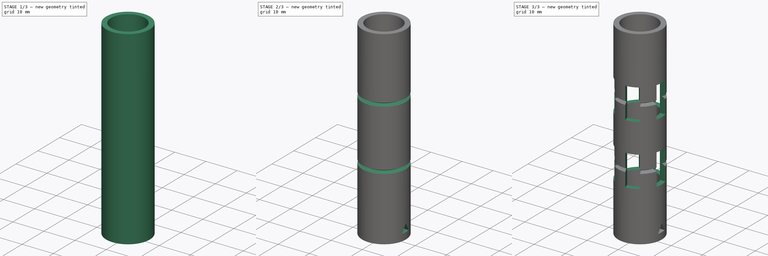
[diagram: build sequence overview — one tinted view per stage of 3, left to right]
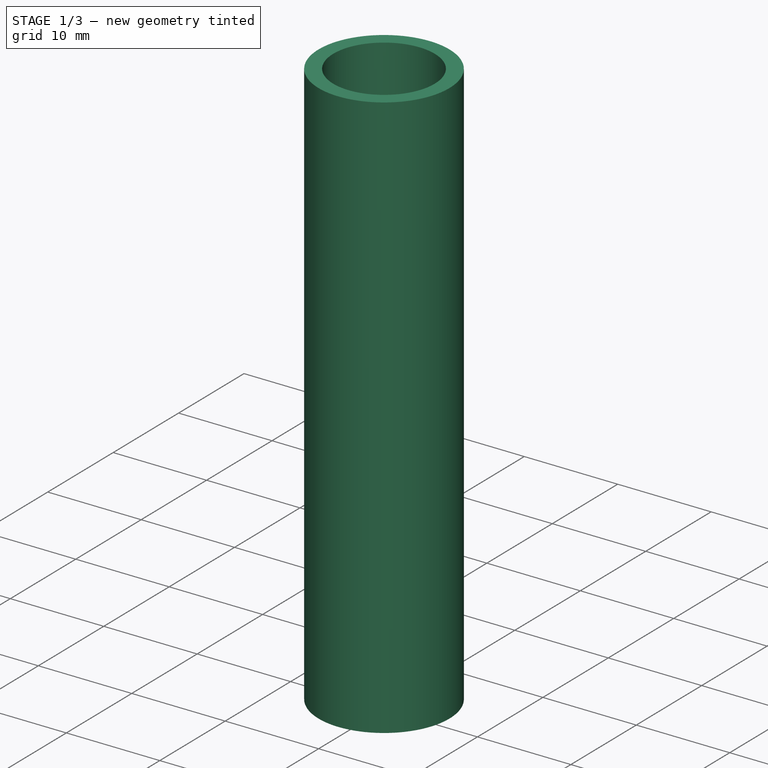
[diagram: stage 1 of 3 — iso view after this stage's code; geometry added in this stage tinted green]
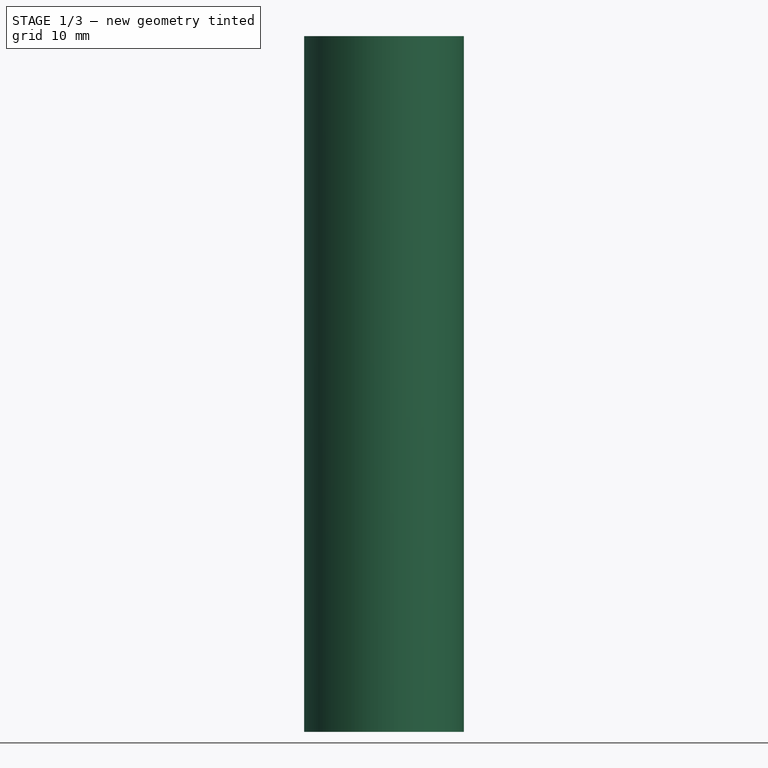
[diagram: stage 1 of 3 — front view after this stage's code; geometry added in this stage tinted green]
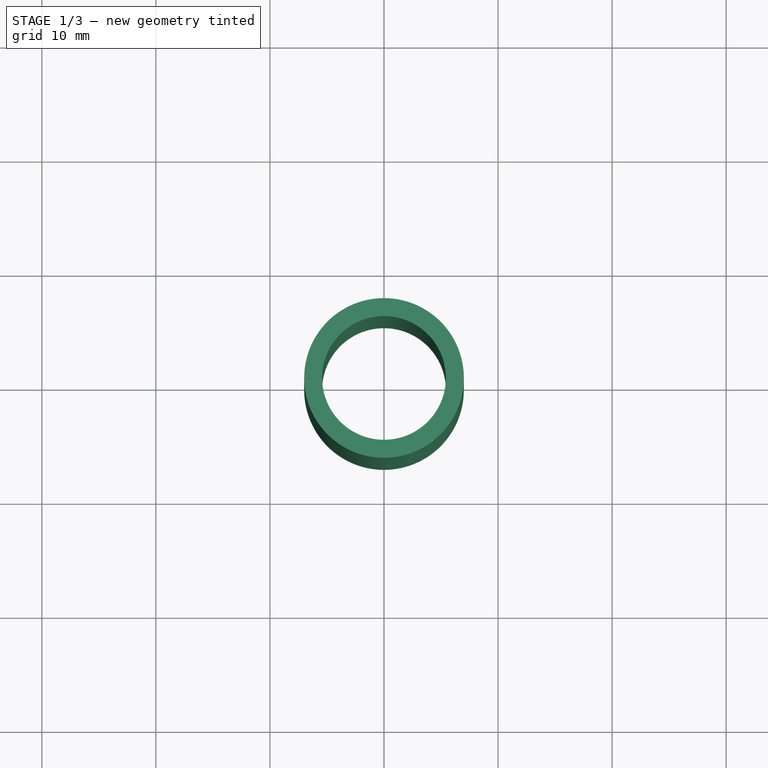
[diagram: stage 1 of 3 — top view after this stage's code; geometry added in this stage tinted green]
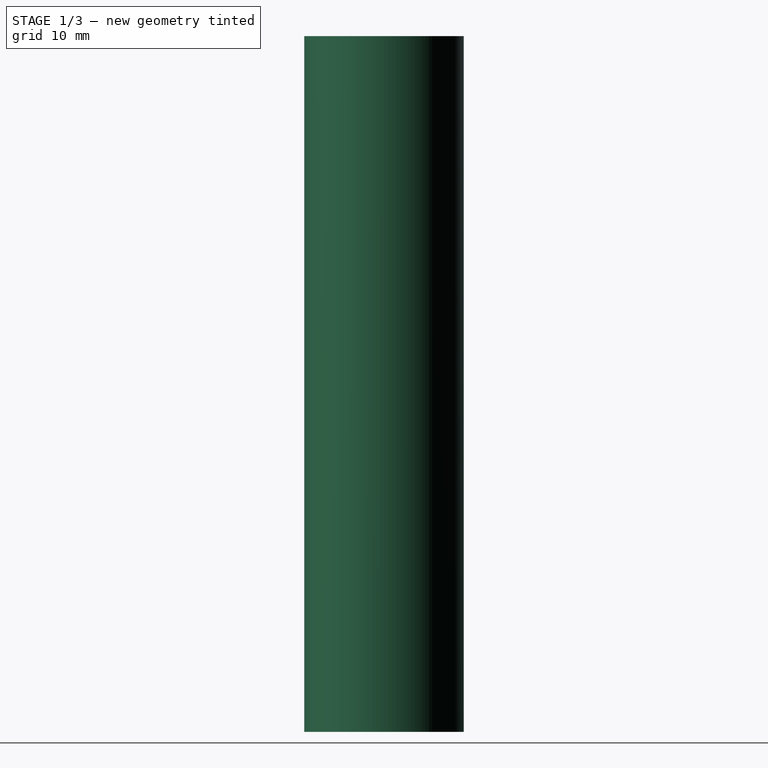
[diagram: stage 1 of 3 — right view after this stage's code; geometry added in this stage tinted green]
FCSTD DOCUMENT  (FreeCAD 0.20R29177 (Git))
Label: syringe
License: All rights reserved
LicenseURL: http://en.wikipedia.org/wiki/All_rights_reserved
objects: Sketcher::SketchObject×5, PartDesign::Pocket×3, PartDesign::Plane×2, PartDesign::Pad×1, PartDesign::Groove×1, PartDesign::PolarPattern×1, PartDesign::Body×1
note: 19 computed .brp shape members not serialized (recipe doc carries the construction recipe); baked Part::Feature solids carry a one-line shape summary decoded from their .brp

FEATURE [Sketcher::SketchObject] Sketch
  FullyConstrained = true
  MapMode = 5
  Support = -> [XY_Plane]
  sketch-geometry (1):
    g0: Circle CenterX=0 CenterY=0 CenterZ=0 NormalX=0 NormalY=0 NormalZ=1 AngleXU=0 Radius=7
  constraints (2):
    c: Coincident(g0,g-1)
    c: Diameter(g0) = 14  'Diameter'
FEATURE [PartDesign::Pad] Pad
  Direction = (0,0,1)
  Length = 61
  Length2 = 10
  Profile = -> Sketch
  ReferenceAxis = -> Sketch [N_Axis]
  Type = 0
FEATURE [Sketcher::SketchObject] Sketch001
  FullyConstrained = true
  MapMode = 5
  Placement = pos=(0,0,61) rot=(0,0,1;0rad)
  Support = -> [Pad]
  sketch-geometry (1):
    g0: Circle CenterX=0 CenterY=0 CenterZ=0 NormalX=0 NormalY=0 NormalZ=1 AngleXU=0 Radius=5.425
  constraints (2):
    c: Coincident(g0,g-1)
    c: Diameter(g0) = 10.85
FEATURE [PartDesign::Pocket] Pocket
  BaseFeature = -> Pad
  Direction = (0,0,-1)
  Length = 5
  Length2 = 5
  Profile = -> Sketch001
  ReferenceAxis = -> Sketch001 [N_Axis]
  Type = 1
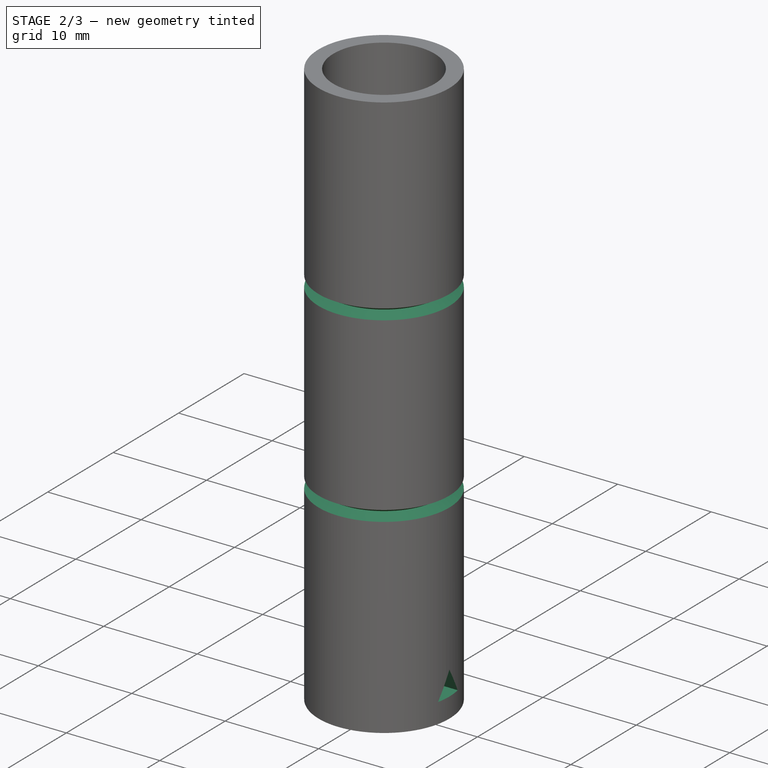
[diagram: stage 2 of 3 — iso view after this stage's code; geometry added in this stage tinted green]
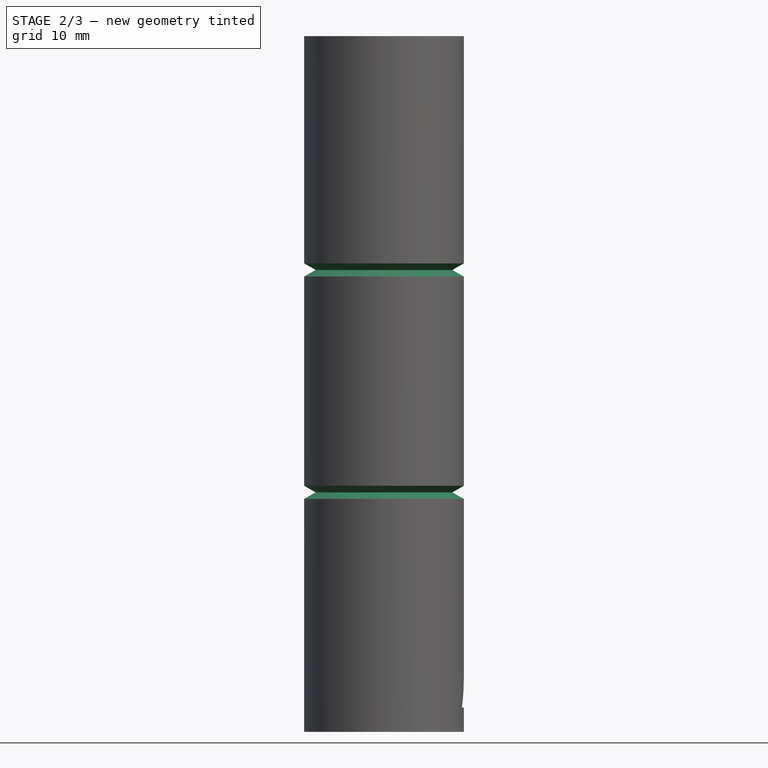
[diagram: stage 2 of 3 — front view after this stage's code; geometry added in this stage tinted green]
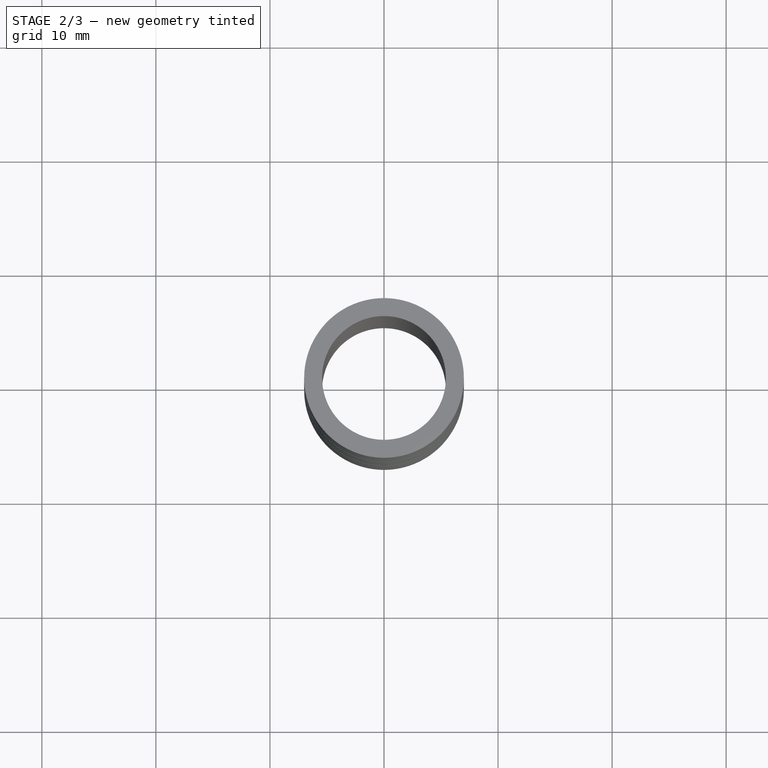
[diagram: stage 2 of 3 — top view after this stage's code; geometry added in this stage tinted green]
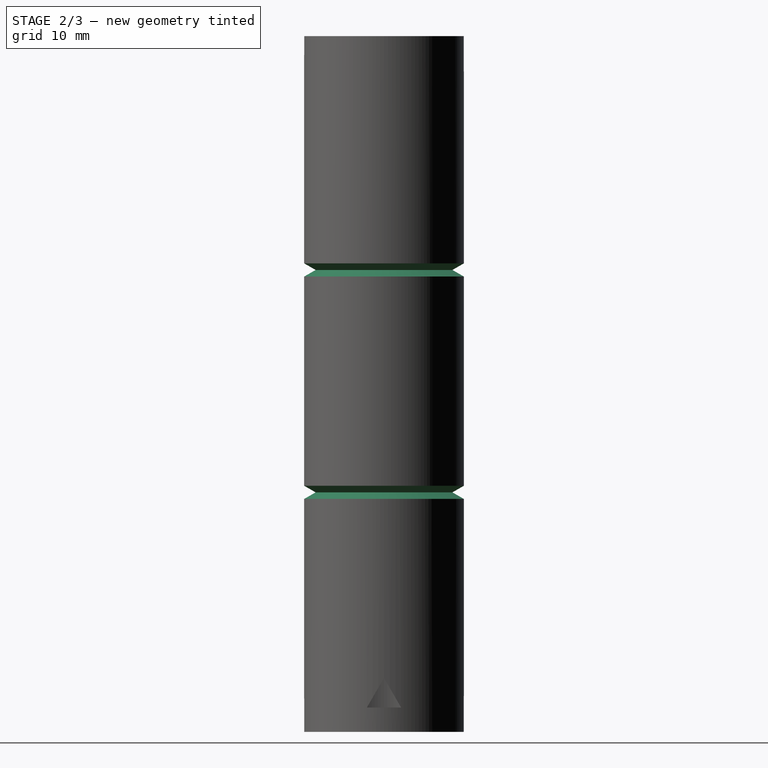
[diagram: stage 2 of 3 — right view after this stage's code; geometry added in this stage tinted green]
FEATURE [PartDesign::Plane] DatumPlane
  AttachmentOffset = pos=(0,0,0) rot=(0,1,0;1.5708rad)
  Length = 99.1149
  MapMode = 45
  Placement = pos=(-9e-16,0,30.5) rot=(0,1,0;1.5708rad)
  ResizeMode = 0
  Support = -> [Pocket]
  Width = 63.1149
FEATURE [Sketcher::SketchObject] Sketch002  label="GrooveSketch"
  ExternalGeometry = -> [Pocket]
  FullyConstrained = false
  MapMode = 5
  Placement = pos=(-9e-16,0,30.5) rot=(0,1,0;1.5708rad)
  Support = -> [DatumPlane]
  sketch-geometry (8):
    g0: LineSegment StartX=9.5 StartY=6 StartZ=0 EndX=11.25 EndY=9.03109 EndZ=0
    g1: LineSegment StartX=11.25 StartY=9.03109 StartZ=0 EndX=7.75 EndY=9.03109 EndZ=0
    g2: LineSegment StartX=7.75 StartY=9.03109 StartZ=0 EndX=9.5 EndY=6 EndZ=0
    g3: Circle CenterX=9.5 CenterY=8.02073 CenterZ=0 NormalX=0 NormalY=0 NormalZ=1 AngleXU=0 Radius=2.02073
    g4: LineSegment StartX=-8.25 StartY=9.03109 StartZ=0 EndX=-11.75 EndY=9.03109 EndZ=0
    g5: LineSegment StartX=-11.75 StartY=9.03109 StartZ=0 EndX=-10 EndY=6 EndZ=0
    g6: LineSegment StartX=-10 StartY=6 StartZ=0 EndX=-8.25 EndY=9.03109 EndZ=0
    g7: Circle CenterX=-10 CenterY=8.02073 CenterZ=0 NormalX=0 NormalY=0 NormalZ=1 AngleXU=0 Radius=2.02073
  constraints (24):
    c: Coincident(g0,g1)
    c: Coincident(g1,g2)
    c: Coincident(g2,g0)
    c: Equal(g0,g1)
    c: Equal(g0,g2)
    c: PointOnObject(g0,g3)
    c: PointOnObject(g1,g3)
    c: PointOnObject(g2,g3)
    c: DistanceX(g3,g-4) = 21  'Measure_2_50'
    c: DistanceX(g1,g1) = 3.5
    c: Coincident(g4,g5)
    c: Coincident(g5,g6)
    c: Coincident(g6,g4)
    c: Equal(g4,g5)
    c: Equal(g4,g6)
    c: PointOnObject(g4,g7)
    c: PointOnObject(g5,g7)
    c: PointOnObject(g6,g7)
    c: Horizontal(g1)
    c: Horizontal(g4)
    c: DistanceX(g4,g4) = 3.5
    c: DistanceX(g7,g-4) = 40.5  'Measure_1_25'
    c: DistanceY(g5,g-3) = 1
    c: DistanceY(g0,g-4) = 1
FEATURE [PartDesign::Groove] Groove
  Angle = 360
  Axis = (-3e-16,3e-16,1)
  Base = (0,0,0)
  BaseFeature = -> Pocket
  Profile = -> Sketch002
  ReferenceAxis = -> Z_Axis
FEATURE [PartDesign::Plane] DatumPlane001
  AttachmentOffset = pos=(0,0,7) rot=(0,0,1;0rad)
  Length = 63.1149
  MapMode = 4
  Placement = pos=(7,0,0) rot=(0.57735,0.57735,0.57735;2.0944rad)
  ResizeMode = 0
  Support = -> [Pocket]
  Width = 99.1149
  expr: .AttachmentOffset.Base.z = <<Sketch>>.Constraints.Diameter / 2
FEATURE [Sketcher::SketchObject] Sketch003
  ExternalGeometry = -> [Groove]
  FullyConstrained = true
  MapMode = 5
  Placement = pos=(7,0,0) rot=(0.57735,0.57735,0.57735;2.0944rad)
  Support = -> [DatumPlane001]
  sketch-geometry (4):
    g0: LineSegment StartX=-1.37474e-11 StartY=4.73205 StartZ=0 EndX=-1.5 EndY=2.13397 EndZ=0
    g1: LineSegment StartX=-1.5 StartY=2.13397 StartZ=0 EndX=1.5 EndY=2.13397 EndZ=0
    g2: LineSegment StartX=1.5 StartY=2.13397 StartZ=0 EndX=-1.37474e-11 EndY=4.73205 EndZ=0
    g3: Circle CenterX=0 CenterY=3 CenterZ=0 NormalX=0 NormalY=0 NormalZ=1 AngleXU=0 Radius=1.73205
  constraints (12):
    c: Coincident(g0,g1)
    c: Coincident(g1,g2)
    c: Coincident(g2,g0)
    c: Equal(g0,g1)
    c: Equal(g0,g2)
    c: PointOnObject(g0,g3)
    c: PointOnObject(g1,g3)
    c: PointOnObject(g2,g3)
    c: Horizontal(g1)
    c: DistanceX(g1,g1) = 3
    c: DistanceX(g3,g-3) = 0
    c: DistanceY(g-3,g3) = 3
FEATURE [PartDesign::Pocket] Pocket001
  BaseFeature = -> Groove
  Direction = (-1,0,0)
  Length = 5
  Length2 = 5
  Profile = -> Sketch003
  ReferenceAxis = -> Sketch003 [N_Axis]
  Type = 0
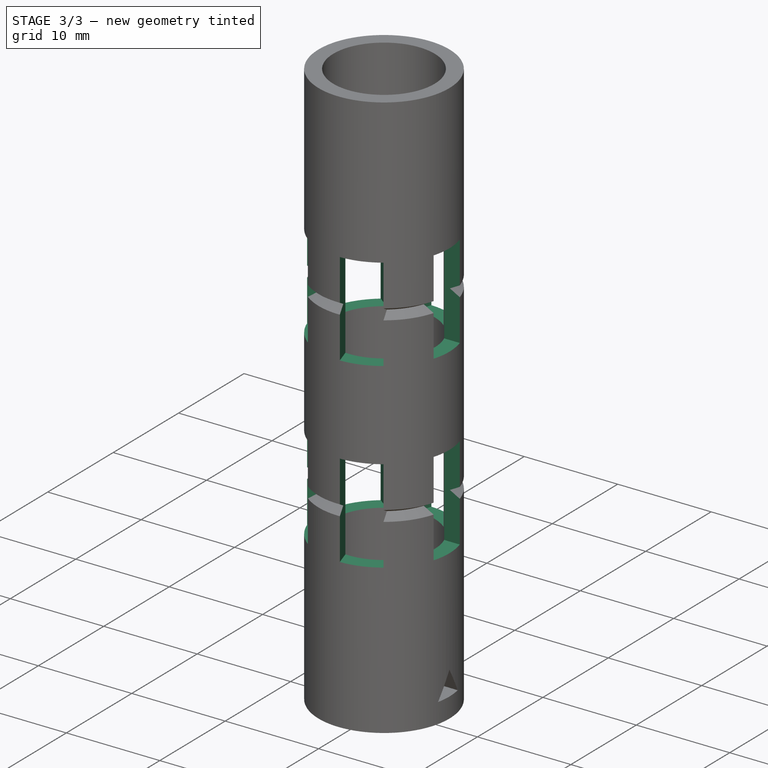
[diagram: stage 3 of 3 — iso view after this stage's code; geometry added in this stage tinted green]
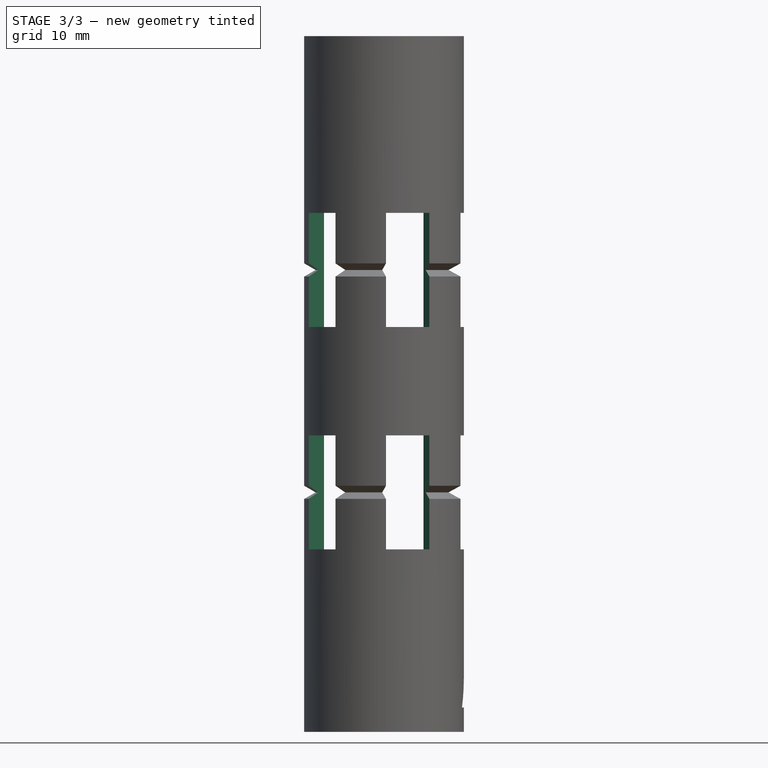
[diagram: stage 3 of 3 — front view after this stage's code; geometry added in this stage tinted green]
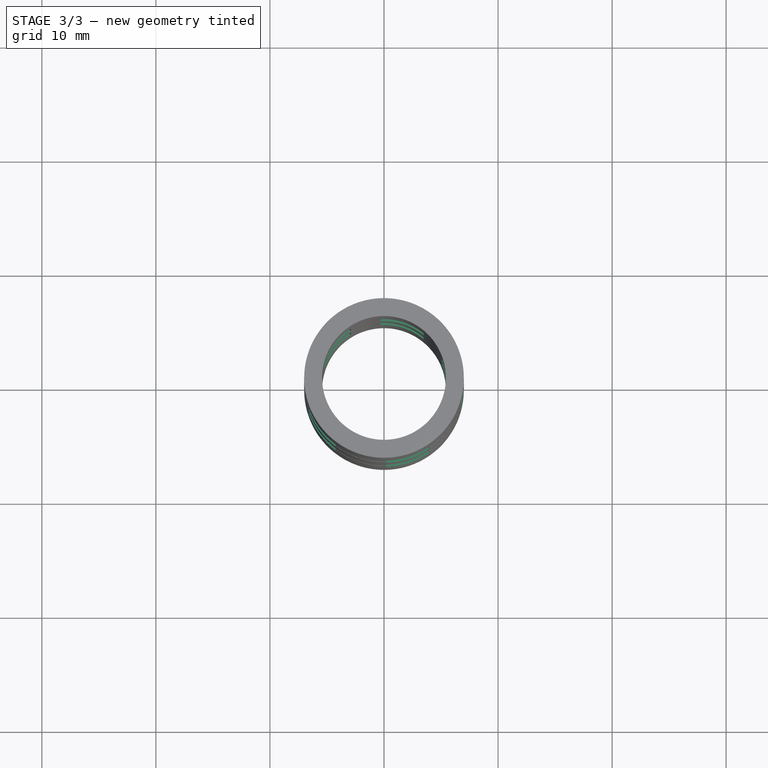
[diagram: stage 3 of 3 — top view after this stage's code; geometry added in this stage tinted green]
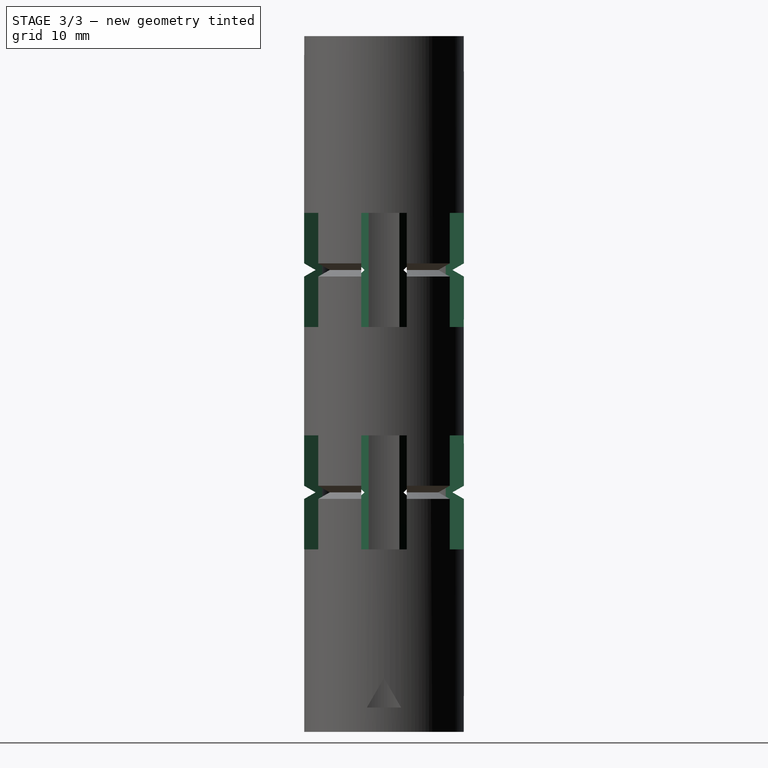
[diagram: stage 3 of 3 — right view after this stage's code; geometry added in this stage tinted green]
FEATURE [Sketcher::SketchObject] Sketch004
  ExternalGeometry = -> [Pocket001]
  FullyConstrained = true
  MapMode = 5
  Placement = pos=(7,0,0) rot=(0.57735,0.57735,0.57735;2.0944rad)
  Support = -> [DatumPlane001]
  expr: Constraints[22] = <<GrooveSketch>>.Constraints.Measure_2_50 - 5mm
  expr: Constraints[23] = <<GrooveSketch>>.Constraints.Measure_1_25 - 5mm
  sketch-geometry (8):
    g0: LineSegment StartX=-2 StartY=45.5 StartZ=0 EndX=2 EndY=45.5 EndZ=0
    g1: LineSegment StartX=2 StartY=45.5 StartZ=0 EndX=2 EndY=35.5 EndZ=0
    g2: LineSegment StartX=2 StartY=35.5 StartZ=0 EndX=-2 EndY=35.5 EndZ=0
    g3: LineSegment StartX=-2 StartY=35.5 StartZ=0 EndX=-2 EndY=45.5 EndZ=0
    g4: LineSegment StartX=-2 StartY=26 StartZ=0 EndX=2 EndY=26 EndZ=0
    g5: LineSegment StartX=2 StartY=26 StartZ=0 EndX=2 EndY=16 EndZ=0
    g6: LineSegment StartX=2 StartY=16 StartZ=0 EndX=-2 EndY=16 EndZ=0
    g7: LineSegment StartX=-2 StartY=16 StartZ=0 EndX=-2 EndY=26 EndZ=0
  constraints (24):
    c: Coincident(g0,g1)
    c: Coincident(g1,g2)
    c: Coincident(g2,g3)
    c: Coincident(g3,g0)
    c: Horizontal(g0)
    c: Horizontal(g2)
    c: Vertical(g1)
    c: Vertical(g3)
    c: DistanceX(g0,g0) = 4
    c: DistanceX(g2,g-3) = 2
    c: DistanceY(g1,g1) = 10
    c: Coincident(g4,g5)
    c: Coincident(g5,g6)
    c: Coincident(g6,g7)
    c: Coincident(g7,g4)
    c: Horizontal(g4)
    c: Horizontal(g6)
    c: Vertical(g5)
    c: Vertical(g7)
    c: DistanceX(g4,g4) = 4
    c: DistanceY(g5,g5) = 10
    c: DistanceX(g4,g-4) = 2
    c: DistanceY(g-1,g6) = 16
    c: DistanceY(g-1,g2) = 35.5
FEATURE [PartDesign::Pocket] Pocket002
  BaseFeature = -> Pocket001
  Direction = (-1,0,0)
  Length = 5
  Length2 = 5
  Profile = -> Sketch004
  ReferenceAxis = -> Sketch004 [N_Axis]
  Type = 0
FEATURE [PartDesign::PolarPattern] PolarPattern
  Angle = 360
  Axis = -> Z_Axis
  BaseFeature = -> Pocket002
  Occurrences = 5
  Originals = -> [Pocket002]
FEATURE [PartDesign::Body] Body
  Group = -> [Sketch,Pad,Sketch001,Pocket,DatumPlane,Sketch002,Groove,DatumPlane001,Sketch003,Pocket001,Sketch004,Pocket002,PolarPattern]
  Origin = -> Origin
  Tip = -> PolarPattern
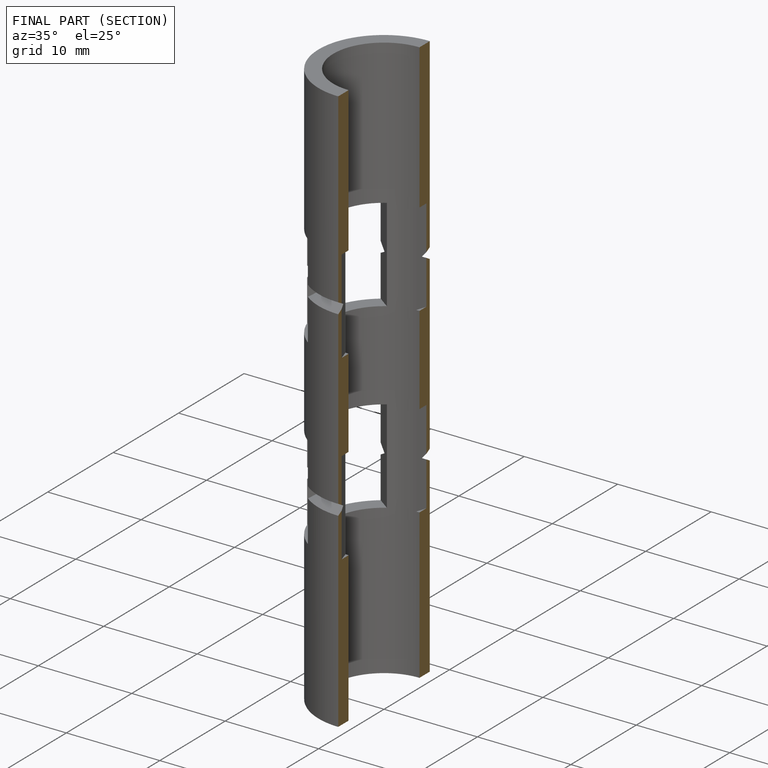
[diagram: finished part — half-section view (interior)]
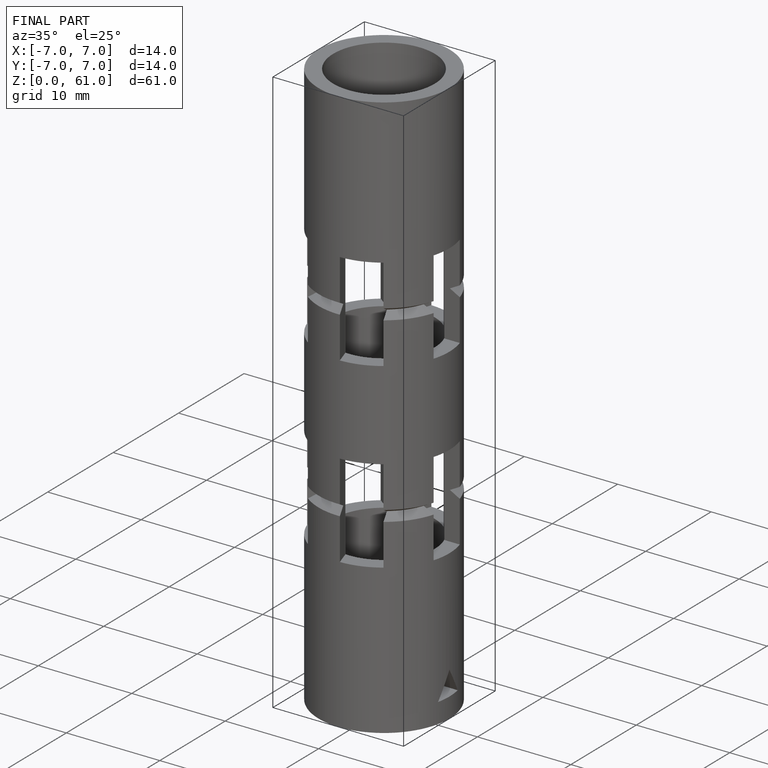
[diagram: finished part — iso view with bounding-box wireframe]
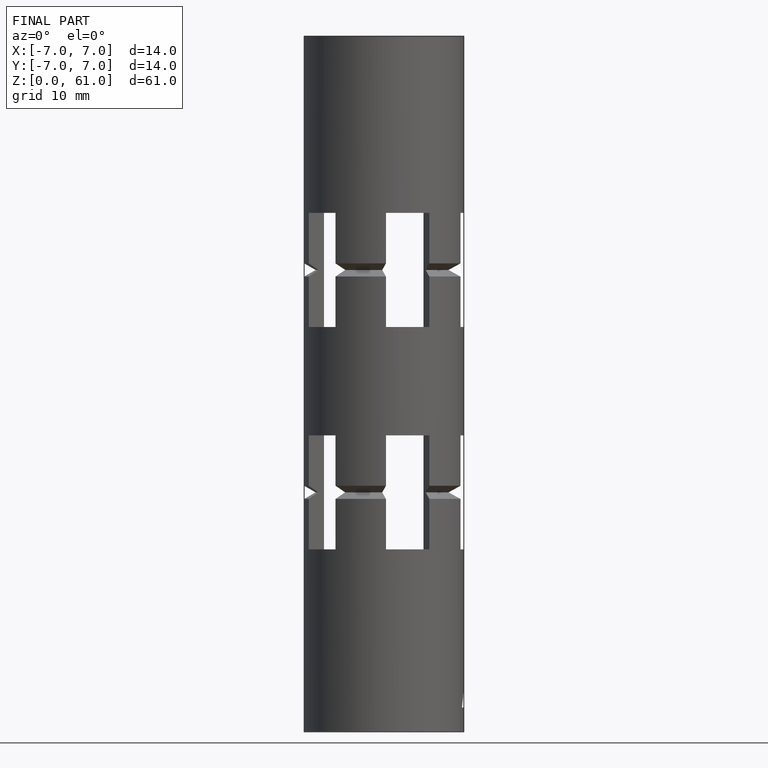
[diagram: finished part — front view with bounding-box wireframe]
